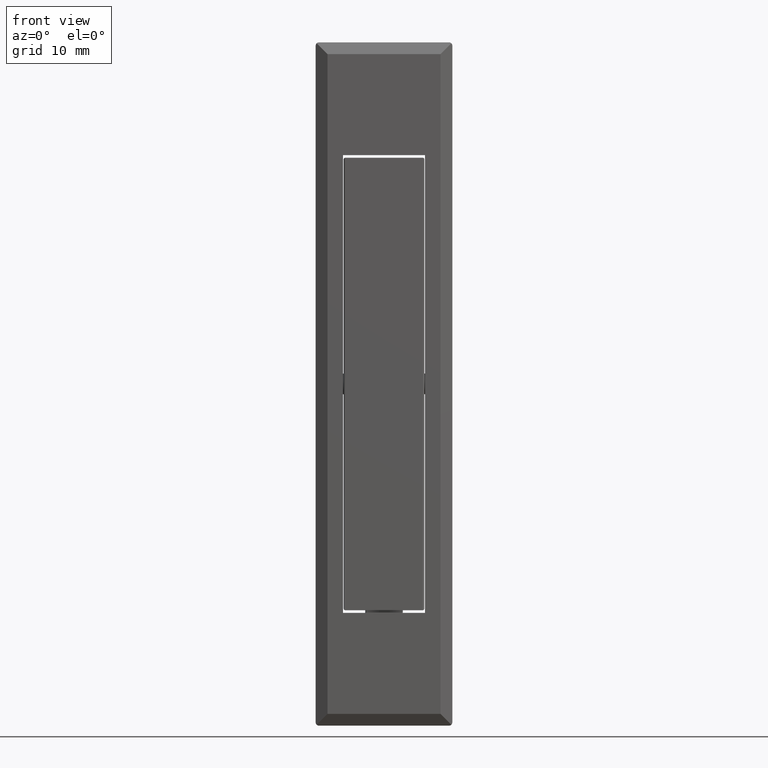
[diagram: clean part render]
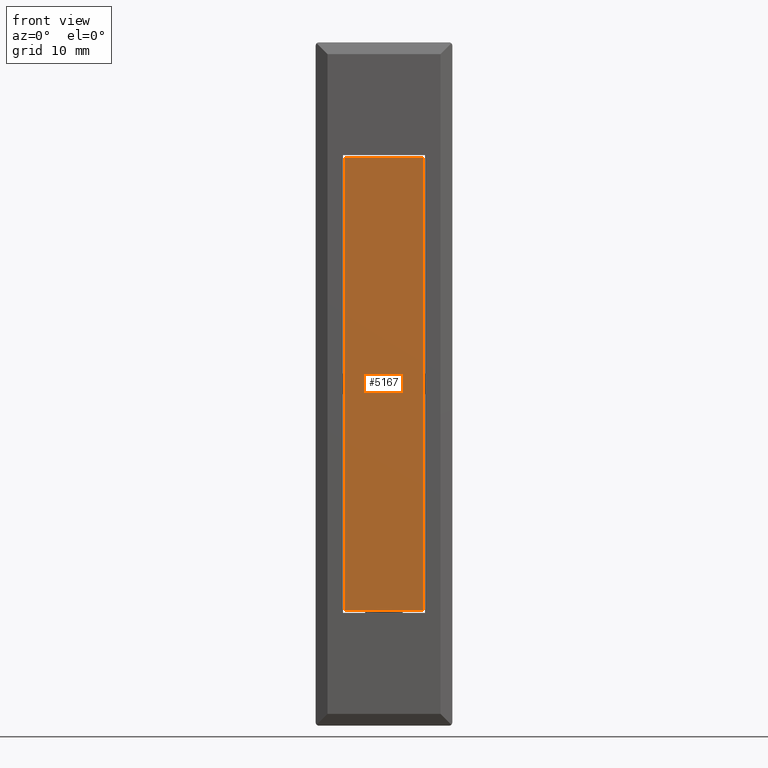
[diagram: same view with one face highlighted and labeled with its STEP entity id]
A machine part, front view. The second image highlights one B-rep face of the part: STEP entity #5167.
In plain terms, the highlighted face is a freeform B-spline surface patch.
Its self-contained STEP definition (entity closure, byte-faithful):
#1666=CARTESIAN_POINT('',(0.0,-5.700000000000000,33.099999999999987));
#1667=VERTEX_POINT('',#1666);
#1847=CARTESIAN_POINT('',(0.0,-5.700000000000000,-33.099999999999987));
#1848=VERTEX_POINT('',#1847);
#1878=CARTESIAN_POINT('',(0.0,-5.700000000000000,-33.099999999999987));
#1879=CARTESIAN_POINT('',(0.0,-5.700000000000000,-11.033333333333360));
#1880=CARTESIAN_POINT('',(0.0,-5.700000000000000,11.033333333333321));
#1881=CARTESIAN_POINT('',(0.0,-5.700000000000000,33.099999999999987));
#1882=B_SPLINE_CURVE_WITH_KNOTS('',3,(#1878,#1879,#1880,#1881),.UNSPECIFIED.,.F.,.U.,(4,4),(0.400000000000000,0.600000000000000),.UNSPECIFIED.);
#1883=EDGE_CURVE('',#1848,#1667,#1882,.T.);
#2290=CARTESIAN_POINT('',(0.0,5.700000000000000,33.099999999999987));
#2291=VERTEX_POINT('',#2290);
#2471=CARTESIAN_POINT('',(0.0,5.700000000000000,-33.099999999999987));
#2472=VERTEX_POINT('',#2471);
#2492=CARTESIAN_POINT('',(0.0,5.700000000000000,33.099999999999987));
#2493=CARTESIAN_POINT('',(0.0,5.700000000000000,11.033333333333321));
#2494=CARTESIAN_POINT('',(0.0,5.700000000000000,-11.033333333333360));
#2495=CARTESIAN_POINT('',(0.0,5.700000000000000,-33.099999999999987));
#2496=B_SPLINE_CURVE_WITH_KNOTS('',3,(#2492,#2493,#2494,#2495),.UNSPECIFIED.,.F.,.U.,(4,4),(0.400000000000000,0.600000000000000),.UNSPECIFIED.);
#2497=EDGE_CURVE('',#2291,#2472,#2496,.T.);
#5135=CARTESIAN_POINT('',(0.0,5.700000000000000,33.099999999999987));
#5136=CARTESIAN_POINT('',(0.0,-5.700000000000000,33.099999999999987));
#5137=QUASI_UNIFORM_CURVE('',1,(#5135,#5136),.UNSPECIFIED.,.F.,.U.);
#5138=EDGE_CURVE('',#2291,#1667,#5137,.T.);
#5152=CARTESIAN_POINT('',(0.0,-6.269429723145696,36.406688392302179));
#5153=CARTESIAN_POINT('',(0.0,-6.269429723145696,-36.406686616679814));
#5154=CARTESIAN_POINT('',(0.0,6.269429417373869,36.406688392302179));
#5155=CARTESIAN_POINT('',(0.0,6.269429417373869,-36.406686616679814));
#5156=B_SPLINE_SURFACE_WITH_KNOTS('',1,1,((#5152,#5154),(#5153,#5155)),.UNSPECIFIED.,.F.,.F.,.U.,(2,2),(2,2),(0.0,72.813375008981978),(0.0,12.538859140519561),.UNSPECIFIED.);
#5157=CARTESIAN_POINT('',(0.0,5.700000000000000,-33.099999999999987));
#5158=CARTESIAN_POINT('',(0.0,-5.700000000000000,-33.099999999999987));
#5159=QUASI_UNIFORM_CURVE('',1,(#5157,#5158),.UNSPECIFIED.,.F.,.U.);
#5160=EDGE_CURVE('',#2472,#1848,#5159,.T.);
#5161=ORIENTED_EDGE('',*,*,#5160,.T.);
#5162=ORIENTED_EDGE('',*,*,#1883,.T.);
#5163=ORIENTED_EDGE('',*,*,#5138,.F.);
#5164=ORIENTED_EDGE('',*,*,#2497,.T.);
#5165=EDGE_LOOP('',(#5161,#5162,#5163,#5164));
#5166=FACE_OUTER_BOUND('',#5165,.T.);
#5167=ADVANCED_FACE('',(#5166),#5156,.F.);